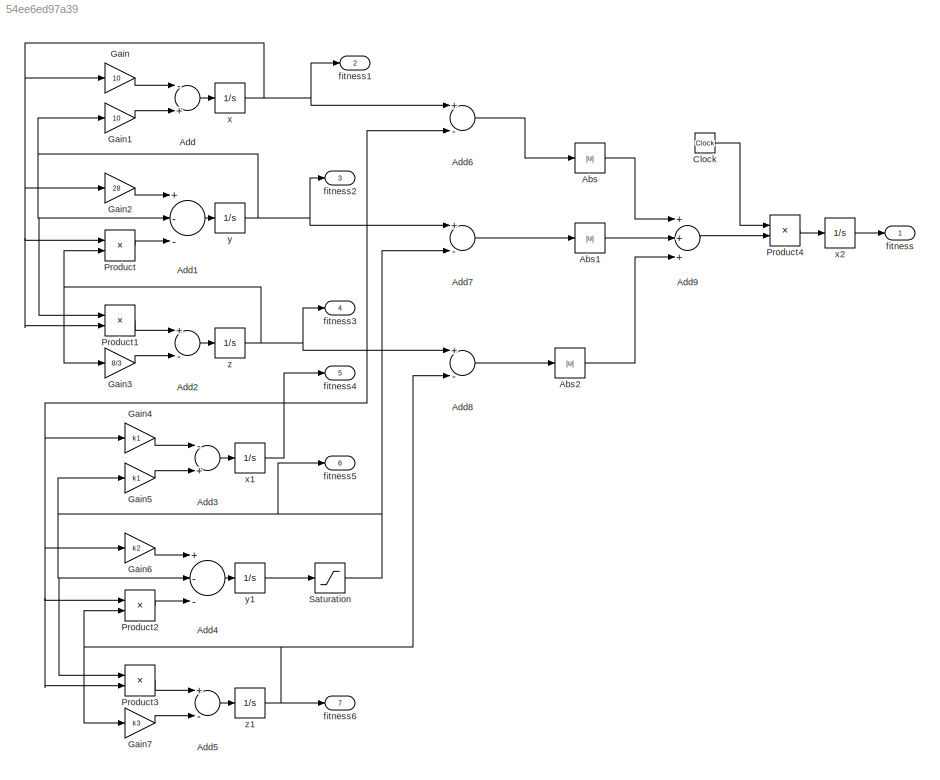
MODEL slx_54ee6ed97a39
KIND model
BLOCK [Abs] Abs
  SaturateOnIntegerOverflow = off
BLOCK [Abs] Abs1
  SaturateOnIntegerOverflow = off
BLOCK [Abs] Abs2
  SaturateOnIntegerOverflow = off
BLOCK [Sum] Add
  InputSameDT = off
  Inputs = -+
  OutDataTypeStr = Inherit: Inherit via internal rule
  Ports = [2, 1]
  SaturateOnIntegerOverflow = off
BLOCK [Sum] Add1
  InputSameDT = off
  Inputs = +--
  OutDataTypeStr = Inherit: Inherit via internal rule
  Ports = [3, 1]
  SaturateOnIntegerOverflow = off
BLOCK [Sum] Add2
  InputSameDT = off
  Inputs = +-
  OutDataTypeStr = Inherit: Inherit via internal rule
  Ports = [2, 1]
  SaturateOnIntegerOverflow = off
BLOCK [Sum] Add3
  InputSameDT = off
  Inputs = -+
  OutDataTypeStr = Inherit: Inherit via internal rule
  Ports = [2, 1]
  SaturateOnIntegerOverflow = off
BLOCK [Sum] Add4
  InputSameDT = off
  Inputs = +--
  OutDataTypeStr = Inherit: Inherit via internal rule
  Ports = [3, 1]
  SaturateOnIntegerOverflow = off
BLOCK [Sum] Add5
  InputSameDT = off
  Inputs = +-
  OutDataTypeStr = Inherit: Inherit via internal rule
  Ports = [2, 1]
  SaturateOnIntegerOverflow = off
BLOCK [Sum] Add6
  InputSameDT = off
  Inputs = +-
  OutDataTypeStr = Inherit: Inherit via internal rule
  Ports = [2, 1]
  SaturateOnIntegerOverflow = off
BLOCK [Sum] Add7
  InputSameDT = off
  Inputs = +-
  OutDataTypeStr = Inherit: Inherit via internal rule
  Ports = [2, 1]
  SaturateOnIntegerOverflow = off
BLOCK [Sum] Add8
  InputSameDT = off
  Inputs = +-
  OutDataTypeStr = Inherit: Inherit via internal rule
  Ports = [2, 1]
  SaturateOnIntegerOverflow = off
BLOCK [Sum] Add9
  InputSameDT = off
  Inputs = +++
  OutDataTypeStr = Inherit: Inherit via internal rule
  Ports = [3, 1]
  SaturateOnIntegerOverflow = off
BLOCK [Clock] Clock
BLOCK [Gain] Gain
  Gain = 10
  OutDataTypeStr = Inherit: Inherit via internal rule
  ParamDataTypeStr = Inherit: Inherit via internal rule
  SaturateOnIntegerOverflow = off
BLOCK [Gain] Gain1
  Gain = 10
  OutDataTypeStr = Inherit: Inherit via internal rule
  ParamDataTypeStr = Inherit: Inherit via internal rule
  SaturateOnIntegerOverflow = off
BLOCK [Gain] Gain2
  Gain = 28
  OutDataTypeStr = Inherit: Inherit via internal rule
  ParamDataTypeStr = Inherit: Inherit via internal rule
  SaturateOnIntegerOverflow = off
BLOCK [Gain] Gain3
  Gain = 8/3
  OutDataTypeStr = Inherit: Inherit via internal rule
  ParamDataTypeStr = Inherit: Inherit via internal rule
  SaturateOnIntegerOverflow = off
BLOCK [Gain] Gain4
  Gain = k1
  OutDataTypeStr = Inherit: Inherit via internal rule
  ParamDataTypeStr = Inherit: Inherit via internal rule
  SaturateOnIntegerOverflow = off
BLOCK [Gain] Gain5
  Gain = k1
  OutDataTypeStr = Inherit: Inherit via internal rule
  ParamDataTypeStr = Inherit: Inherit via internal rule
  SaturateOnIntegerOverflow = off
BLOCK [Gain] Gain6
  Gain = k2
  OutDataTypeStr = Inherit: Inherit via internal rule
  ParamDataTypeStr = Inherit: Inherit via internal rule
  SaturateOnIntegerOverflow = off
BLOCK [Gain] Gain7
  Gain = k3
  OutDataTypeStr = Inherit: Inherit via internal rule
  ParamDataTypeStr = Inherit: Inherit via internal rule
  SaturateOnIntegerOverflow = off
BLOCK [Product] Product
  InputSameDT = off
  OutDataTypeStr = Inherit: Inherit via internal rule
  Ports = [2, 1]
  RndMeth = Floor
  SaturateOnIntegerOverflow = off
BLOCK [Product] Product1
  InputSameDT = off
  OutDataTypeStr = Inherit: Inherit via internal rule
  Ports = [2, 1]
  RndMeth = Floor
  SaturateOnIntegerOverflow = off
BLOCK [Product] Product2
  InputSameDT = off
  OutDataTypeStr = Inherit: Inherit via internal rule
  Ports = [2, 1]
  RndMeth = Floor
  SaturateOnIntegerOverflow = off
BLOCK [Product] Product3
  InputSameDT = off
  OutDataTypeStr = Inherit: Inherit via internal rule
  Ports = [2, 1]
  RndMeth = Floor
  SaturateOnIntegerOverflow = off
BLOCK [Product] Product4
  InputSameDT = off
  OutDataTypeStr = Inherit: Inherit via internal rule
  Ports = [2, 1]
  RndMeth = Floor
  SaturateOnIntegerOverflow = off
BLOCK [Saturate] Saturation
  InputPortMap = u0
  LowerLimit = -80
  Ports = [1, 1]
  UpperLimit = 80
BLOCK [Outport] fitness
  IconDisplay = Port number
BLOCK [Outport] fitness1
  IconDisplay = Port number
  Port = 2
BLOCK [Outport] fitness2
  IconDisplay = Port number
  Port = 3
BLOCK [Outport] fitness3
  IconDisplay = Port number
  Port = 4
BLOCK [Outport] fitness4
  IconDisplay = Port number
  Port = 5
BLOCK [Outport] fitness5
  IconDisplay = Port number
  Port = 6
BLOCK [Outport] fitness6
  IconDisplay = Port number
  Port = 7
BLOCK [Integrator] x
  InitialCondition = 0.02
  Ports = [1, 1]
BLOCK [Integrator] x1
  InitialCondition = 0.02
  Ports = [1, 1]
BLOCK [Integrator] x2
  Ports = [1, 1]
BLOCK [Integrator] y
  InitialCondition = 0.01
  Ports = [1, 1]
BLOCK [Integrator] y1
  InitialCondition = 0.01
  Ports = [1, 1]
BLOCK [Integrator] z
  InitialCondition = 0.03
  Ports = [1, 1]
BLOCK [Integrator] z1
  InitialCondition = 0.03
  Ports = [1, 1]
LINE Abs1:1 -> Add9:2
LINE Abs2:1 -> Add9:3
LINE Abs:1 -> Add9:1
LINE Add1:1 -> y:1
LINE Add2:1 -> z:1
LINE Add3:1 -> x1:1
LINE Add4:1 -> y1:1
LINE Add5:1 -> z1:1
LINE Add6:1 -> Abs:1
LINE Add7:1 -> Abs1:1
LINE Add8:1 -> Abs2:1
LINE Add9:1 -> Product4:2
LINE Add:1 -> x:1
LINE Clock:1 -> Product4:1
LINE Gain1:1 -> Add:2
LINE Gain2:1 -> Add1:1
LINE Gain3:1 -> Add2:2
LINE Gain4:1 -> Add3:1
LINE Gain5:1 -> Add3:2
LINE Gain6:1 -> Add4:1
LINE Gain7:1 -> Add5:2
LINE Gain:1 -> Add:1
LINE Product1:1 -> Add2:1
LINE Product2:1 -> Add4:3
LINE Product3:1 -> Add5:1
LINE Product4:1 -> x2:1
LINE Product:1 -> Add1:3
NET Saturation:1 -> Add4:2, Add7:2, Gain5:1, Product3:1, fitness5:1
NET x1:1 -> Add6:2, Gain4:1, Gain6:1, Product2:1, Product3:2, fitness4:1
LINE x2:1 -> fitness:1
NET x:1 -> Add6:1, Gain2:1, Gain:1, Product1:2, Product:1, fitness1:1
LINE y1:1 -> Saturation:1
NET y:1 -> Add1:2, Add7:1, Gain1:1, Product1:1, fitness2:1
NET z1:1 -> Add8:2, Gain7:1, Product2:2, fitness6:1
NET z:1 -> Add8:1, Gain3:1, Product:2, fitness3:1
note: NET lines group one-source signal fan-out (src -> all destinations, sorted); 1:1 wires keep LINE
